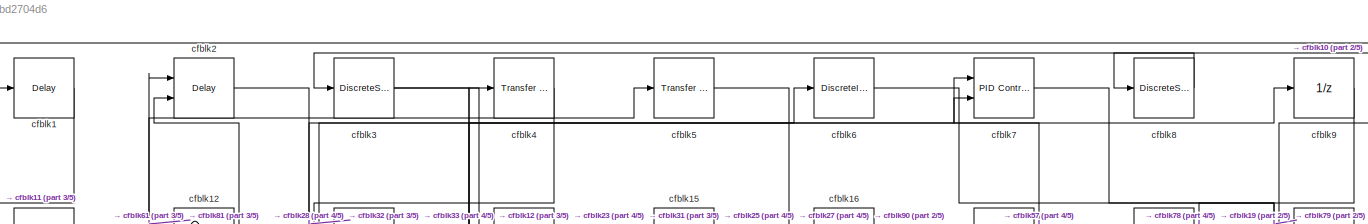
[diagram: root canvas - part 1/5, full width, top band]
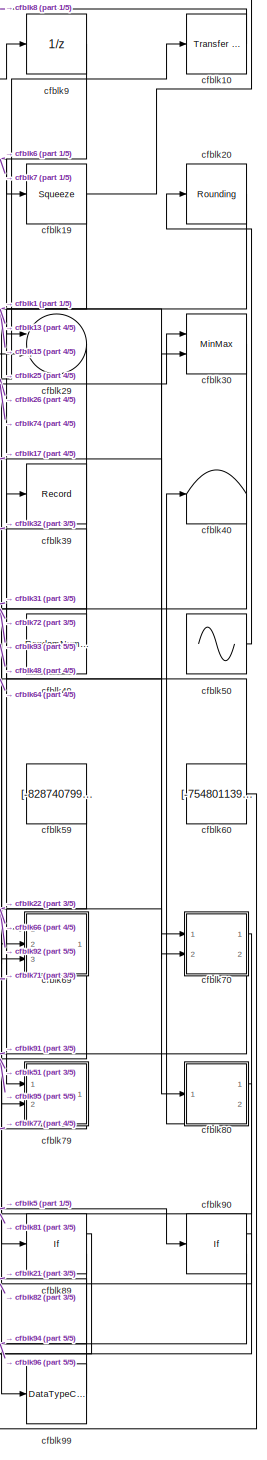
[diagram: root canvas - part 2/5, right side, full height]
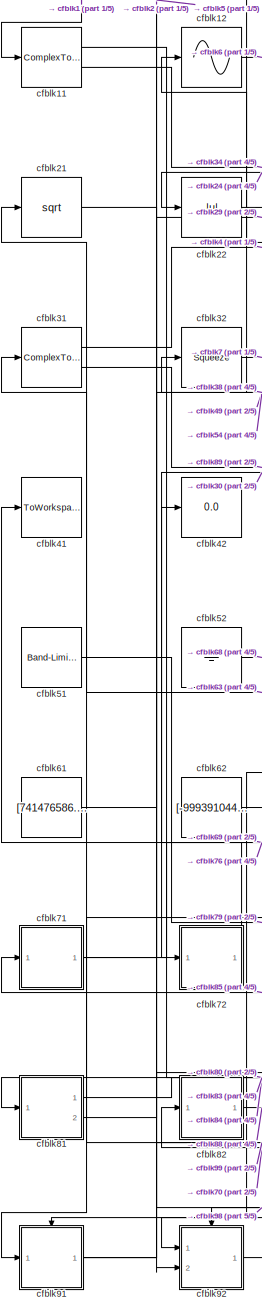
[diagram: root canvas - part 3/5, left side, full height]
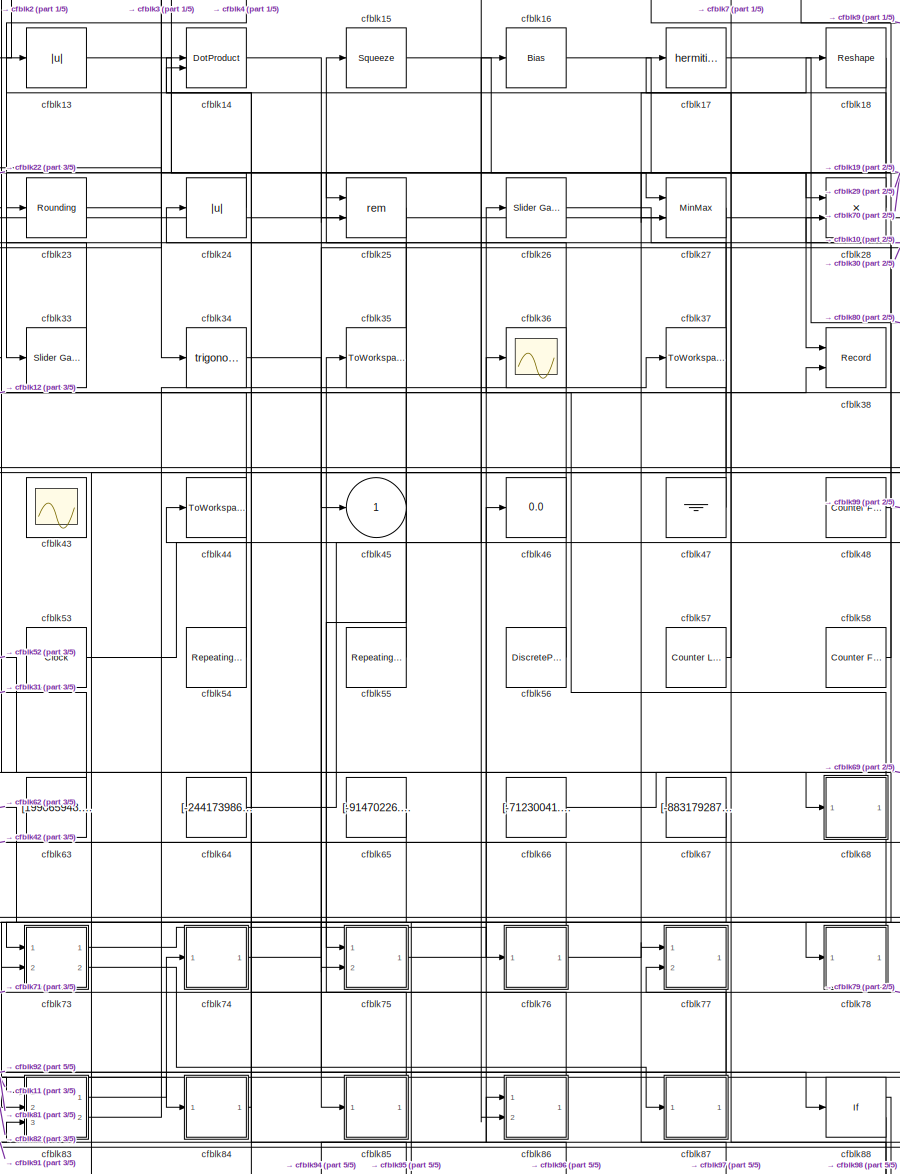
[diagram: root canvas - part 4/5, center side, full height]
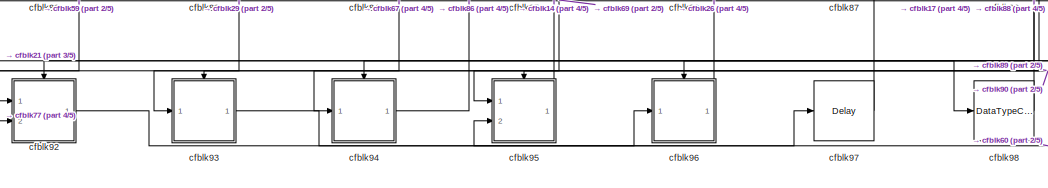
[diagram: root canvas - part 5/5, bottom center region]
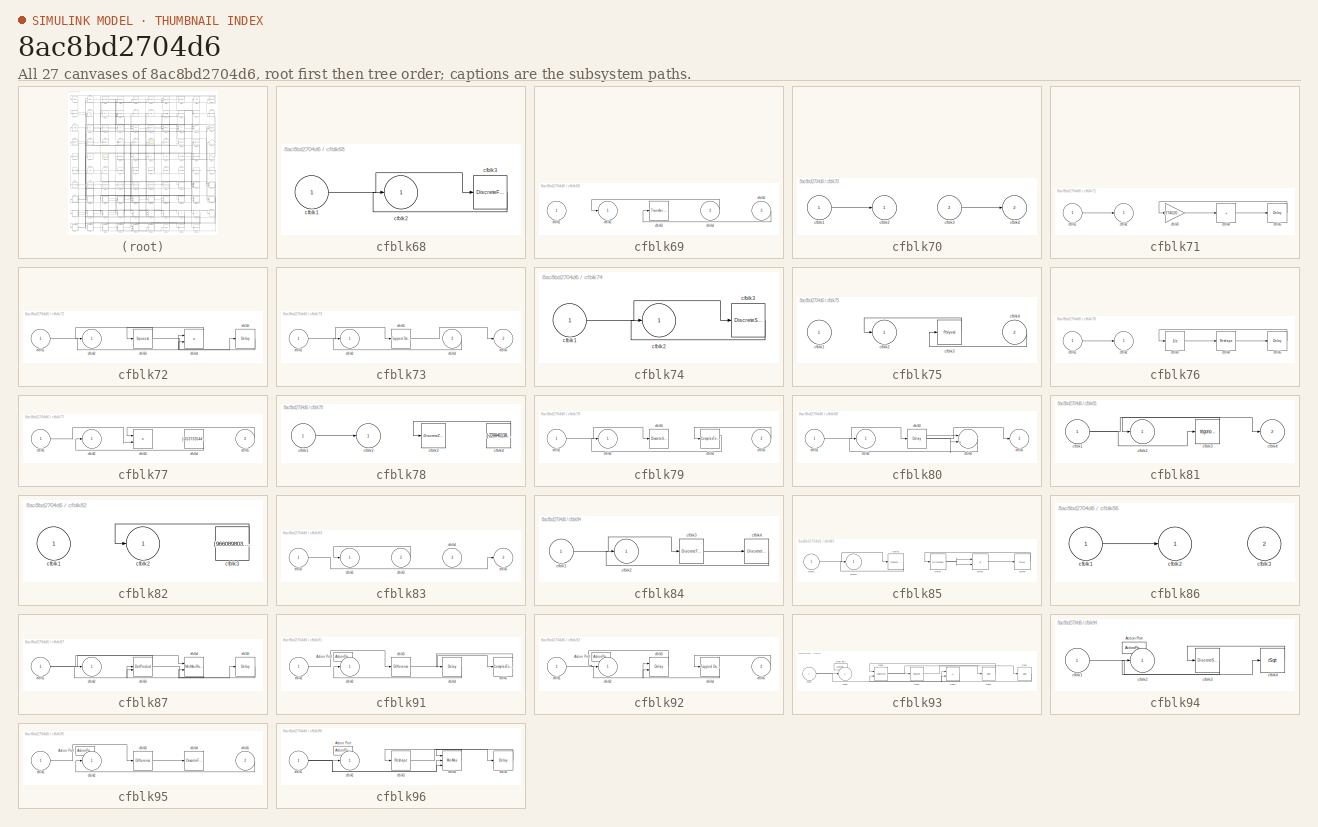
[diagram: thumbnail index - all 27 canvases of the model, root first then tree order]
MODEL slx_8ac8bd2704d6
KIND model
CONFIG AbsTol = auto
CONFIG EnableMultiTasking = off
CONFIG FixedStep = auto
CONFIG MaxStep = auto
CONFIG MinStep = auto
CONFIG RelTol = 1e-3
CONFIG SampleTimeConstraint = Unconstrained
CONFIG SolverName = VariableStepAuto
CONFIG StartTime = 0.0
CONFIG StopTime = 10.0
BLOCK [Delay] cfblk1
  InputPortMap = u0
  Ports = [1, 1]
  SampleTime = 1
BLOCK [Reference] cfblk10  REF=simulink/Discrete/Transfer Fcn
Real Zero
  Ports = [1, 1]
  SourceBlock = simulink/Discrete/Transfer Fcn\nReal Zero
  SourceProductBaseCode = SL
  SourceType = Transfer Fcn Real Zero
BLOCK [ComplexToMagnitudeAngle] cfblk11
  Ports = [1, 2]
BLOCK [Sin] cfblk12
  Ports = [1, 1]
  SampleTime = 0
  TimeSource = Use external signal
BLOCK [Abs] cfblk13
  SaturateOnIntegerOverflow = off
BLOCK [DotProduct] cfblk14
  OutDataTypeStr = Inherit: Inherit via internal rule
BLOCK [Squeeze] cfblk15
BLOCK [Bias] cfblk16
  Bias = [415498538.252529]
  SaturateOnIntegerOverflow = off
BLOCK [Math] cfblk17
  Operator = hermitian
  Ports = [1, 1]
BLOCK [Reshape] cfblk18
  Ports = [1, 1]
BLOCK [Squeeze] cfblk19
BLOCK [Delay] cfblk2
  InputPortMap = u0,e6
  Ports = [2, 1]
  SampleTime = 1
  ShowEnablePort = on
BLOCK [Rounding] cfblk20
BLOCK [Sqrt] cfblk21
BLOCK [Abs] cfblk22
  SaturateOnIntegerOverflow = off
BLOCK [Rounding] cfblk23
BLOCK [Abs] cfblk24
  SaturateOnIntegerOverflow = off
BLOCK [Math] cfblk25
  Operator = rem
  Ports = [2, 1]
BLOCK [Reference] cfblk26  REF=simulink/Math
Operations/Slider
Gain
  Ports = [1, 1]
  SourceBlock = simulink/Math\nOperations/Slider\nGain
  SourceProductBaseCode = SL
  SourceType = Slider Gain
BLOCK [MinMax] cfblk27
  Inputs = 2
  Ports = [2, 1]
BLOCK [Product] cfblk28
  Ports = [2, 1]
BLOCK [Sum] cfblk29
  Inputs = |++
  Ports = [2, 1]
BLOCK [DiscreteStateSpace] cfblk3
BLOCK [MinMax] cfblk30
  Function = max
  Inputs = 2
  Ports = [2, 1]
BLOCK [ComplexToRealImag] cfblk31
  Ports = [1, 2]
BLOCK [Squeeze] cfblk32
BLOCK [Reference] cfblk33  REF=simulink/Math
Operations/Slider
Gain
  Ports = [1, 1]
  SourceBlock = simulink/Math\nOperations/Slider\nGain
  SourceProductBaseCode = SL
  SourceType = Slider Gain
BLOCK [Trigonometry] cfblk34
  Ports = [1, 1]
BLOCK [ToWorkspace] cfblk35
  FixptAsFi = on
  MaxDataPoints = inf
  Ports = [1]
  SampleTime = -1
  SaveFormat = Timeseries
  VariableName = wsccavu
BLOCK [Scope] cfblk36
  Floating = off
  NumInputPorts = 1
  Ports = [1]
BLOCK [ToWorkspace] cfblk37
  FixptAsFi = on
  MaxDataPoints = inf
  Ports = [1]
  SampleTime = -1
  SaveFormat = Timeseries
  VariableName = lpgnain
BLOCK [Record] cfblk38
  CompatibilityTag = XY
  FileSettingsInternal = {"entries":[{"content":{"excelSettings":{"content":{},"type":"Streamout.ExcelSettings"}},"type":"Streamout.FileSettingStorage","uuid":"55c07847-b416-4147-ba9b-c4fbf5457b55"}],"packageUris":["http://schema.mathworks.com/mf0/streamout_blocks/R2020a"],"version":"1.0"}
  Layout = [1 1]
  Ports = [2]
  SignalsInternal = {"entries":[{"content":{"signals":[{"content":{"blockPath":["sampleModel270/cfblk38"],"channel":[],"dimensions":[1],"domain":"sampleModel270/cfblk38","lineColor":"#a2142f","plots":[1],"port":1,"sid":[""],"signalID":11209,"signalName":"cfblk16"},"type":"RecordBlkView.Signal","uuid":"6d9d134b-09a8-4e77-b9a8-4c5e57516884"},{"content":{"blockPath":["sampleModel270/cfblk38"],"channel":[],"dimensions":[...<+385ch>
  VisualizationBindings = {"xyplotplugin":{"info":[{"series":[{"bindingParametersList":[{"parameter":"X-Axis","signalID":11209,"signalName":"cfblk16"},{"parameter":"Y-Axis","signalID":11213,"signalName":"cfblk91"}],"seriesID":19260}],"subplotID":1}]}}
BLOCK [Record] cfblk39
  FileSettingsInternal = {"entries":[{"content":{"excelSettings":{"content":{},"type":"Streamout.ExcelSettings"}},"type":"Streamout.FileSettingStorage","uuid":"3d67d137-5401-4fa9-bcac-a18ba41f64ea"}],"packageUris":["http://schema.mathworks.com/mf0/streamout_blocks/R2020a"],"version":"1.0"}
  Ports = [1]
  SignalsInternal = {"entries":[{"content":{"signals":[{"content":{"blockPath":["sampleModel270/cfblk39"],"channel":[],"dimensions":[1],"domain":"sampleModel270/cfblk39","lineColor":"#fe330a","plots":[1],"port":1,"sid":[""],"signalID":11217,"signalName":"cfblk60"},"type":"RecordBlkView.Signal","uuid":"4590cb18-5316-4242-95f9-f30dc2470911"}]},"type":"RecordBlkView.InputSignals","uuid":"af798ec9-883d-434f-9e97-72437914...<+98ch>
  VisualizationBindings = {"sparklinesplugin":{"info":[{"bindingParametersList":[],"subplotID":1}]}}
BLOCK [Reference] cfblk4  REF=simulink/Discrete/Transfer Fcn
Real Zero
  Ports = [1, 1]
  SourceBlock = simulink/Discrete/Transfer Fcn\nReal Zero
  SourceProductBaseCode = SL
  SourceType = Transfer Fcn Real Zero
BLOCK [Terminator] cfblk40
BLOCK [ToWorkspace] cfblk41
  FixptAsFi = on
  MaxDataPoints = inf
  Ports = [1]
  SampleTime = -1
  SaveFormat = Timeseries
  VariableName = fwykvbd
BLOCK [Display] cfblk42
  Decimation = 1
  Ports = [1]
BLOCK [Scope] cfblk43
  Floating = on
  NumInputPorts = 1
  Ports = []
BLOCK [ToWorkspace] cfblk44
  FixptAsFi = on
  MaxDataPoints = inf
  Ports = [1]
  SampleTime = -1
  SaveFormat = Timeseries
  VariableName = zkzctmg
BLOCK [Outport] cfblk45
BLOCK [Display] cfblk46
  Decimation = 1
  Ports = [1]
BLOCK [Ground] cfblk47
BLOCK [Reference] cfblk48  REF=simulink/Sources/Counter
Free-Running
  Ports = [0, 1]
  SourceBlock = simulink/Sources/Counter\nFree-Running
  SourceProductBaseCode = SL
  SourceType = Counter Free-Running
BLOCK [RandomNumber] cfblk49
  Mean = [-13361.001595]
  SampleTime = 0.1
  Seed = [353484768.000000]
  Variance = [83852.352686]
BLOCK [Reference] cfblk5  REF=simulink/Discrete/Transfer Fcn
Lead or Lag
  Ports = [1, 1]
  SourceBlock = simulink/Discrete/Transfer Fcn\nLead or Lag
  SourceProductBaseCode = SL
  SourceType = Lead or Lag Compensator
BLOCK [Sin] cfblk50
  Amplitude = [595358799.977348]
  Bias = [424544015.992801]
  Ports = [0, 1]
  SampleTime = 0
BLOCK [Reference] cfblk51  REF=simulink/Sources/Band-Limited
White Noise
  Ports = [0, 1]
  SourceBlock = simulink/Sources/Band-Limited\nWhite Noise
  SourceProductBaseCode = SL
  SourceType = Band-Limited White Noise.
BLOCK [Ground] cfblk52
BLOCK [Clock] cfblk53
BLOCK [Reference] cfblk54  REF=simulink/Sources/Repeating
Sequence
  Ports = [0, 1]
  SourceBlock = simulink/Sources/Repeating\nSequence
  SourceProductBaseCode = SL
  SourceType = Repeating table
BLOCK [Reference] cfblk55  REF=simulink/Sources/Repeating
Sequence
Stair
  Ports = [0, 1]
  SourceBlock = simulink/Sources/Repeating\nSequence\nStair
  SourceProductBaseCode = SL
  SourceType = Repeating Sequence Stair
BLOCK [DiscretePulseGenerator] cfblk56
  Amplitude = [87379413.478695]
  Period = [35675365.567741]
  PhaseDelay = [7.000000]
  Ports = [0, 1]
  PulseType = Time based
  PulseWidth = 5
BLOCK [Reference] cfblk57  REF=simulink/Sources/Counter
Limited
  Ports = [0, 1]
  SourceBlock = simulink/Sources/Counter\nLimited
  SourceProductBaseCode = SL
  SourceType = Counter Limited
BLOCK [Reference] cfblk58  REF=simulink/Sources/Counter
Free-Running
  Ports = [0, 1]
  SourceBlock = simulink/Sources/Counter\nFree-Running
  SourceProductBaseCode = SL
  SourceType = Counter Free-Running
BLOCK [Constant] cfblk59
  SampleTime = 1
  Value = [-828740799.563611]
BLOCK [DiscreteIntegrator] cfblk6
  ICPrevOutput = DiscIntNeverNeededParam
  ICPrevScaledInput = DiscIntNeverNeededParam
  InitialConditionSetting = Auto
  Ports = [1, 1]
BLOCK [Constant] cfblk60
  SampleTime = 1
  Value = [-754801139.607691]
BLOCK [Constant] cfblk61
  SampleTime = 1
  Value = [741476586.692557]
BLOCK [Constant] cfblk62
  SampleTime = 1
  Value = [-999391044.804403]
BLOCK [Constant] cfblk63
  SampleTime = 1
  Value = [199065948.524050]
BLOCK [Constant] cfblk64
  SampleTime = 1
  Value = [-244173986.256376]
BLOCK [Constant] cfblk65
  SampleTime = 1
  Value = [-91470226.901784]
BLOCK [Constant] cfblk66
  SampleTime = 1
  Value = [-71230041.904026]
BLOCK [Constant] cfblk67
  SampleTime = 1
  Value = [-883179287.350071]
BLOCK [SubSystem] cfblk68
  Ports = [1, 1]
  RequestExecContextInheritance = off
BLOCK [Inport] cfblk68/cfblk1
BLOCK [Outport] cfblk68/cfblk2
BLOCK [DiscreteFir] cfblk68/cfblk3
  InputPortMap = u0
  OutputPortMap = o0
  Ports = [1, 1]
  SampleTime = 1
BLOCK [SubSystem] cfblk69
  Ports = [3, 1]
  RequestExecContextInheritance = off
BLOCK [Inport] cfblk69/cfblk1
BLOCK [Outport] cfblk69/cfblk2
BLOCK [Reference] cfblk69/cfblk3  REF=simulink/Discrete/Transfer Fcn
Lead or Lag
  Ports = [1, 1]
  SourceBlock = simulink/Discrete/Transfer Fcn\nLead or Lag
  SourceProductBaseCode = SL
  SourceType = Lead or Lag Compensator
BLOCK [Inport] cfblk69/cfblk4
  Port = 2
BLOCK [Inport] cfblk69/cfblk5
  Port = 3
BLOCK [Reference] cfblk7  REF=slpidlib/PID Controller (2DOF)
  Ports = [2, 1]
  SourceBlock = slpidlib/PID Controller (2DOF)
  SourceProductBaseCode = SL
  SourceType = PID 2dof
BLOCK [SubSystem] cfblk70
  Ports = [2, 2]
  RequestExecContextInheritance = off
BLOCK [Inport] cfblk70/cfblk1
BLOCK [Outport] cfblk70/cfblk2
BLOCK [Inport] cfblk70/cfblk3
  Port = 2
BLOCK [Outport] cfblk70/cfblk4
  Port = 2
BLOCK [SubSystem] cfblk71
  Ports = [1, 1]
  RequestExecContextInheritance = off
BLOCK [Inport] cfblk71/cfblk1
BLOCK [Outport] cfblk71/cfblk2
BLOCK [Gain] cfblk71/cfblk3
  Gain = [774020727.519928]
BLOCK [Sum] cfblk71/cfblk4
  IconShape = rectangular
  Inputs = +
  Ports = [1, 1]
BLOCK [Delay] cfblk71/cfblk5
  InputPortMap = u0
  Ports = [1, 1]
  SampleTime = 1
BLOCK [SubSystem] cfblk72
  Ports = [1, 1]
  RequestExecContextInheritance = off
BLOCK [Inport] cfblk72/cfblk1
BLOCK [Outport] cfblk72/cfblk2
BLOCK [Squeeze] cfblk72/cfblk3
BLOCK [Product] cfblk72/cfblk4
  Ports = [2, 1]
BLOCK [Delay] cfblk72/cfblk5
  InputPortMap = u0
  Ports = [1, 1]
  SampleTime = 1
BLOCK [SubSystem] cfblk73
  Ports = [2, 2]
  RequestExecContextInheritance = off
BLOCK [Inport] cfblk73/cfblk1
BLOCK [Outport] cfblk73/cfblk2
BLOCK [Reference] cfblk73/cfblk3  REF=simulink/Discrete/Tapped Delay
  Ports = [1, 1]
  SourceBlock = simulink/Discrete/Tapped Delay
  SourceProductBaseCode = SL
  SourceType = Tapped Delay Line
BLOCK [Inport] cfblk73/cfblk4
  Port = 2
BLOCK [Outport] cfblk73/cfblk5
  Port = 2
BLOCK [SubSystem] cfblk74
  Ports = [1, 1]
  RequestExecContextInheritance = off
BLOCK [Inport] cfblk74/cfblk1
BLOCK [Outport] cfblk74/cfblk2
BLOCK [DiscreteStateSpace] cfblk74/cfblk3
BLOCK [SubSystem] cfblk75
  Ports = [2, 1]
  RequestExecContextInheritance = off
BLOCK [Inport] cfblk75/cfblk1
BLOCK [Outport] cfblk75/cfblk2
BLOCK [Polyval] cfblk75/cfblk3
  Coefs = [ +2.081618890e-019, -1.441693666e-014, +4.719686976e-010, -8.536869453e-006, +1.621573104e-001, -8.087801117e+001 ]
BLOCK [Inport] cfblk75/cfblk4
  Port = 2
BLOCK [SubSystem] cfblk76
  Ports = [1, 1]
  RequestExecContextInheritance = off
BLOCK [Inport] cfblk76/cfblk1
BLOCK [Outport] cfblk76/cfblk2
BLOCK [UnitDelay] cfblk76/cfblk3
  HasFrameUpgradeWarning = on
BLOCK [Reshape] cfblk76/cfblk4
  Ports = [1, 1]
BLOCK [Delay] cfblk76/cfblk5
  InputPortMap = u0
  Ports = [1, 1]
  SampleTime = 1
BLOCK [SubSystem] cfblk77
  Ports = [2, 1]
  RequestExecContextInheritance = off
BLOCK [Inport] cfblk77/cfblk1
BLOCK [Outport] cfblk77/cfblk2
BLOCK [Product] cfblk77/cfblk3
  Inputs = **
  Ports = [2, 1]
BLOCK [Constant] cfblk77/cfblk4
  SampleTime = 1
  Value = [-653733544.862791]
BLOCK [Inport] cfblk77/cfblk5
  Port = 2
BLOCK [SubSystem] cfblk78
  Ports = [1, 1]
  RequestExecContextInheritance = off
BLOCK [Inport] cfblk78/cfblk1
BLOCK [Outport] cfblk78/cfblk2
BLOCK [DiscreteZeroPole] cfblk78/cfblk3
  Gain = 1
  Poles = [0 0.5]
BLOCK [Constant] cfblk78/cfblk4
  SampleTime = 1
  Value = [-229940139.054615]
BLOCK [SubSystem] cfblk79
  Ports = [2, 1]
  RequestExecContextInheritance = off
BLOCK [Inport] cfblk79/cfblk1
BLOCK [Outport] cfblk79/cfblk2
BLOCK [DiscreteStateSpace] cfblk79/cfblk3
BLOCK [ComplexToRealImag] cfblk79/cfblk4
  Ports = [1, 2]
BLOCK [Inport] cfblk79/cfblk5
  Port = 2
BLOCK [DiscreteStateSpace] cfblk8
BLOCK [SubSystem] cfblk80
  Ports = [1, 2]
  RequestExecContextInheritance = off
BLOCK [Inport] cfblk80/cfblk1
BLOCK [Outport] cfblk80/cfblk2
BLOCK [Delay] cfblk80/cfblk3
  InputPortMap = u0
  Ports = [1, 1]
  SampleTime = 1
BLOCK [Sum] cfblk80/cfblk4
  Inputs = |++
  Ports = [2, 1]
BLOCK [Outport] cfblk80/cfblk5
  Port = 2
BLOCK [SubSystem] cfblk81
  Ports = [1, 2]
  RequestExecContextInheritance = off
BLOCK [Inport] cfblk81/cfblk1
BLOCK [Outport] cfblk81/cfblk2
BLOCK [Trigonometry] cfblk81/cfblk3
  Ports = [1, 1]
BLOCK [Outport] cfblk81/cfblk4
  Port = 2
BLOCK [SubSystem] cfblk82
  Ports = [1, 1]
  RequestExecContextInheritance = off
BLOCK [Inport] cfblk82/cfblk1
BLOCK [Outport] cfblk82/cfblk2
BLOCK [Constant] cfblk82/cfblk3
  SampleTime = 1
  Value = [966089803.831900]
BLOCK [SubSystem] cfblk83
  Ports = [3, 2]
  RequestExecContextInheritance = off
BLOCK [Inport] cfblk83/cfblk1
BLOCK [Outport] cfblk83/cfblk2
BLOCK [Inport] cfblk83/cfblk3
  Port = 2
BLOCK [Inport] cfblk83/cfblk4
  Port = 3
BLOCK [Outport] cfblk83/cfblk5
  Port = 2
BLOCK [SubSystem] cfblk84
  Ports = [1, 1]
  RequestExecContextInheritance = off
BLOCK [Inport] cfblk84/cfblk1
BLOCK [Outport] cfblk84/cfblk2
BLOCK [DiscreteTransferFcn] cfblk84/cfblk3
  InputPortMap = u0
  Ports = [1, 1]
  SampleTime = 1
BLOCK [DiscreteIntegrator] cfblk84/cfblk4
  ICPrevOutput = DiscIntNeverNeededParam
  ICPrevScaledInput = DiscIntNeverNeededParam
  InitialConditionSetting = Auto
  Ports = [1, 1]
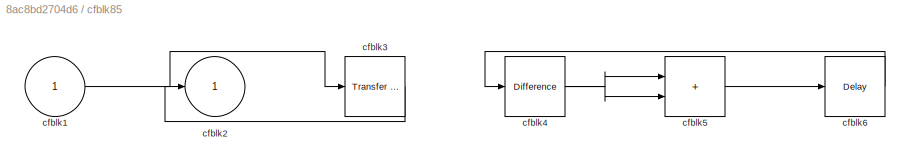
BLOCK [SubSystem] cfblk85
  Ports = [1, 1]
  RequestExecContextInheritance = off
BLOCK [Inport] cfblk85/cfblk1
BLOCK [Outport] cfblk85/cfblk2
BLOCK [Reference] cfblk85/cfblk3  REF=simulink/Discrete/Transfer Fcn
Lead or Lag
  Ports = [1, 1]
  SourceBlock = simulink/Discrete/Transfer Fcn\nLead or Lag
  SourceProductBaseCode = SL
  SourceType = Lead or Lag Compensator
BLOCK [Reference] cfblk85/cfblk4  REF=simulink/Discrete/Difference
  Ports = [1, 1]
  SourceBlock = simulink/Discrete/Difference
  SourceProductBaseCode = SL
  SourceType = Difference
BLOCK [Sum] cfblk85/cfblk5
  IconShape = rectangular
  Ports = [2, 1]
BLOCK [Delay] cfblk85/cfblk6
  InputPortMap = u0
  Ports = [1, 1]
  SampleTime = 1
BLOCK [SubSystem] cfblk86
  Ports = [2, 1]
  RequestExecContextInheritance = off
BLOCK [Inport] cfblk86/cfblk1
BLOCK [Outport] cfblk86/cfblk2
BLOCK [Inport] cfblk86/cfblk3
  Port = 2
BLOCK [SubSystem] cfblk87
  Ports = [1, 1]
  RequestExecContextInheritance = off
BLOCK [Inport] cfblk87/cfblk1
BLOCK [Outport] cfblk87/cfblk2
BLOCK [DotProduct] cfblk87/cfblk3
  OutDataTypeStr = Inherit: Inherit via internal rule
BLOCK [Reference] cfblk87/cfblk4  REF=simulink/Math
Operations/MinMax
Running
Resettable
  Ports = [2, 1]
  SourceBlock = simulink/Math\nOperations/MinMax\nRunning\nResettable
  SourceProductBaseCode = SL
  SourceType = MinMax Running Resettable
BLOCK [Delay] cfblk87/cfblk5
  InputPortMap = u0
  Ports = [1, 1]
  SampleTime = 1
BLOCK [If] cfblk88
  IfExpression = u1 >= 0
  Ports = [1, 2]
  SampleTime = 1
BLOCK [If] cfblk89
  IfExpression = u1 >= 0
  Ports = [1, 2]
  SampleTime = 1
BLOCK [UnitDelay] cfblk9
  HasFrameUpgradeWarning = on
BLOCK [If] cfblk90
  IfExpression = u1 >= 0
  Ports = [1, 2]
  SampleTime = 1
BLOCK [SubSystem] cfblk91
  Ports = [1, 1, 0, 0, 0, 0, 0, 1]
  RequestExecContextInheritance = off
  TreatAsAtomicUnit = on
BLOCK [ActionPort] cfblk91/Action Port
  ActionPortLabel = if(u1 >= 0)
BLOCK [Inport] cfblk91/cfblk1
BLOCK [Outport] cfblk91/cfblk2
BLOCK [Reference] cfblk91/cfblk3  REF=simulink/Discrete/Difference
  Ports = [1, 1]
  SourceBlock = simulink/Discrete/Difference
  SourceProductBaseCode = SL
  SourceType = Difference
BLOCK [Delay] cfblk91/cfblk4
  InputPortMap = u0
  Ports = [1, 1]
BLOCK [ComplexToRealImag] cfblk91/cfblk5
  Ports = [1, 2]
BLOCK [SubSystem] cfblk92
  Ports = [2, 1, 0, 0, 0, 0, 0, 1]
  RequestExecContextInheritance = off
  TreatAsAtomicUnit = on
BLOCK [ActionPort] cfblk92/Action Port
  ActionPortLabel = else
BLOCK [Inport] cfblk92/cfblk1
BLOCK [Outport] cfblk92/cfblk2
BLOCK [Delay] cfblk92/cfblk3
  InputPortMap = u0,e6
  Ports = [2, 1]
  ShowEnablePort = on
BLOCK [Reference] cfblk92/cfblk4  REF=simulink/Discrete/Tapped Delay
  Ports = [1, 1]
  SourceBlock = simulink/Discrete/Tapped Delay
  SourceProductBaseCode = SL
  SourceType = Tapped Delay Line
BLOCK [Inport] cfblk92/cfblk5
  Port = 2
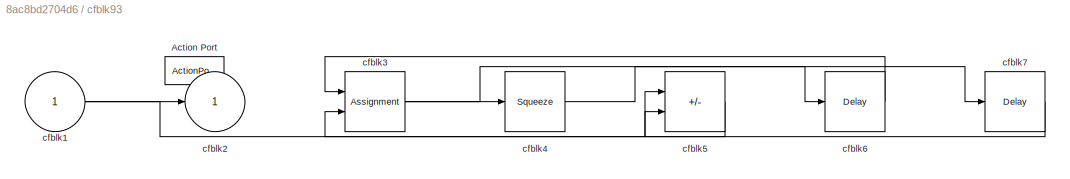
BLOCK [SubSystem] cfblk93
  Ports = [1, 1, 0, 0, 0, 0, 0, 1]
  RequestExecContextInheritance = off
  TreatAsAtomicUnit = on
BLOCK [ActionPort] cfblk93/Action Port
  ActionPortLabel = if(u1 >= 0)
BLOCK [Inport] cfblk93/cfblk1
BLOCK [Outport] cfblk93/cfblk2
BLOCK [Assignment] cfblk93/cfblk3
  DiagnosticForDimensions = Warning
  IndexOptions = Index vector (dialog)
  Indices = 1
  OutputSizes = 1
  Ports = [2, 1]
BLOCK [Squeeze] cfblk93/cfblk4
BLOCK [Sum] cfblk93/cfblk5
  IconShape = rectangular
  Inputs = +-
  Ports = [2, 1]
BLOCK [Delay] cfblk93/cfblk6
  InputPortMap = u0
  Ports = [1, 1]
BLOCK [Delay] cfblk93/cfblk7
  InputPortMap = u0
  Ports = [1, 1]
BLOCK [SubSystem] cfblk94
  Ports = [1, 1, 0, 0, 0, 0, 0, 1]
  RequestExecContextInheritance = off
  TreatAsAtomicUnit = on
BLOCK [ActionPort] cfblk94/Action Port
  ActionPortLabel = else
BLOCK [Inport] cfblk94/cfblk1
BLOCK [Outport] cfblk94/cfblk2
BLOCK [DiscreteStateSpace] cfblk94/cfblk3
  SampleTime = -1
BLOCK [Sqrt] cfblk94/cfblk4
  AlgorithmType = Newton-Raphson
  Operator = rSqrt
BLOCK [SubSystem] cfblk95
  Ports = [2, 1, 0, 0, 0, 0, 0, 1]
  RequestExecContextInheritance = off
  TreatAsAtomicUnit = on
BLOCK [ActionPort] cfblk95/Action Port
  ActionPortLabel = if(u1 >= 0)
BLOCK [Inport] cfblk95/cfblk1
BLOCK [Outport] cfblk95/cfblk2
BLOCK [Reference] cfblk95/cfblk3  REF=simulink/Discrete/Difference
  Ports = [1, 1]
  SourceBlock = simulink/Discrete/Difference
  SourceProductBaseCode = SL
  SourceType = Difference
BLOCK [DiscreteFir] cfblk95/cfblk4
  InputPortMap = u0
  OutputPortMap = o0
  Ports = [1, 1]
BLOCK [Inport] cfblk95/cfblk5
  Port = 2
BLOCK [SubSystem] cfblk96
  Ports = [1, 1, 0, 0, 0, 0, 0, 1]
  RequestExecContextInheritance = off
  TreatAsAtomicUnit = on
BLOCK [ActionPort] cfblk96/Action Port
  ActionPortLabel = else
BLOCK [Inport] cfblk96/cfblk1
BLOCK [Outport] cfblk96/cfblk2
BLOCK [Reshape] cfblk96/cfblk3
  Ports = [1, 1]
BLOCK [MinMax] cfblk96/cfblk4
  Function = max
  Inputs = 3
  Ports = [3, 1]
BLOCK [Delay] cfblk96/cfblk5
  InputPortMap = u0
  Ports = [1, 1]
BLOCK [Delay] cfblk97
  InputPortMap = u0
  Ports = [1, 1]
  SampleTime = 1
BLOCK [DataTypeConversion] cfblk98
  RndMeth = Floor
  SaturateOnIntegerOverflow = off
BLOCK [DataTypeConversion] cfblk99
  RndMeth = Floor
  SaturateOnIntegerOverflow = off
LINE cfblk10:1 -> cfblk8:1
LINE cfblk11:1 -> cfblk84:1
LINE cfblk11:2 -> cfblk34:1
LINE cfblk12:1 -> cfblk6:1
LINE cfblk13:1 -> cfblk29:1
LINE cfblk14:1 -> cfblk86:2
LINE cfblk15:1 -> cfblk70:1
LINE cfblk16:1 -> cfblk38:1
LINE cfblk17:1 -> cfblk80:1
LINE cfblk18:1 -> cfblk27:2
NET cfblk19:1 -> cfblk1:1, cfblk25:1
LINE cfblk1:1 -> cfblk11:1
LINE cfblk20:1 -> cfblk69:3
LINE cfblk21:1 -> cfblk98:1
LINE cfblk22:1 -> cfblk70:2
LINE cfblk23:1 -> cfblk9:1
LINE cfblk24:1 -> cfblk22:1
LINE cfblk25:1 -> cfblk75:1
LINE cfblk26:1 -> cfblk10:1
LINE cfblk27:1 -> cfblk75:2
LINE cfblk28:1 -> cfblk13:1
LINE cfblk29:1 -> cfblk93:1
LINE cfblk2:1 -> cfblk28:1
LINE cfblk30:1 -> cfblk72:1
LINE cfblk31:1 -> cfblk4:1
LINE cfblk31:2 -> cfblk89:1
LINE cfblk32:1 -> cfblk7:1
LINE cfblk33:1 -> cfblk2:2
LINE cfblk34:1 -> cfblk45:1
NET cfblk3:1 -> cfblk25:2, cfblk27:1
LINE cfblk47:1 -> cfblk23:1
LINE cfblk48:1 -> cfblk99:1
LINE cfblk49:1 -> cfblk32:1
LINE cfblk4:1 -> cfblk33:1
LINE cfblk50:1 -> cfblk20:1
LINE cfblk51:1 -> cfblk79:2
LINE cfblk52:1 -> cfblk68:1
LINE cfblk53:1 -> cfblk16:1
LINE cfblk54:1 -> cfblk12:1
LINE cfblk55:1 -> cfblk24:1
LINE cfblk56:1 -> cfblk15:1
LINE cfblk57:1 -> cfblk7:2
LINE cfblk58:1 -> cfblk28:2
LINE cfblk59:1 -> cfblk92:1
LINE cfblk5:1 -> cfblk90:1
NET cfblk60:1 -> cfblk39:1, cfblk95:2
LINE cfblk61:1 -> cfblk2:1
LINE cfblk62:1 -> cfblk85:1
LINE cfblk63:1 -> cfblk31:1
LINE cfblk64:1 -> cfblk30:2
LINE cfblk65:1 -> cfblk83:2
LINE cfblk66:1 -> cfblk69:2
LINE cfblk67:1 -> cfblk94:1
LINE cfblk68/cfblk1:1 -> cfblk68/cfblk3:1
LINE cfblk68/cfblk3:1 -> cfblk68/cfblk2:1
NET cfblk68:1 -> cfblk36:1, cfblk73:2
LINE cfblk69/cfblk4:1 -> cfblk69/cfblk2:1
LINE cfblk69/cfblk5:1 -> cfblk69/cfblk3:1
LINE cfblk69:1 -> cfblk95:1
LINE cfblk6:1 -> cfblk79:1
LINE cfblk70/cfblk1:1 -> cfblk70/cfblk2:1
LINE cfblk70/cfblk3:1 -> cfblk70/cfblk4:1
LINE cfblk70:1 -> cfblk82:1
LINE cfblk70:2 -> cfblk91:1
LINE cfblk71/cfblk1:1 -> cfblk71/cfblk2:1
LINE cfblk71/cfblk3:1 -> cfblk71/cfblk4:1
LINE cfblk71/cfblk4:1 -> cfblk71/cfblk5:1
LINE cfblk71/cfblk5:1 -> cfblk71/cfblk3:1
NET cfblk71:1 -> cfblk29:2, cfblk69:1
LINE cfblk72/cfblk1:1 -> cfblk72/cfblk4:1
NET cfblk72/cfblk3:1 -> cfblk72/cfblk2:1, cfblk72/cfblk5:1
LINE cfblk72/cfblk4:1 -> cfblk72/cfblk3:1
LINE cfblk72/cfblk5:1 -> cfblk72/cfblk4:2
LINE cfblk72:1 -> cfblk41:1
LINE cfblk73/cfblk1:1 -> cfblk73/cfblk3:1
LINE cfblk73/cfblk3:1 -> cfblk73/cfblk5:1
LINE cfblk73/cfblk4:1 -> cfblk73/cfblk2:1
LINE cfblk73:1 -> cfblk76:1
LINE cfblk73:2 -> cfblk87:1
LINE cfblk74/cfblk1:1 -> cfblk74/cfblk3:1
LINE cfblk74/cfblk3:1 -> cfblk74/cfblk2:1
LINE cfblk74:1 -> cfblk30:1
LINE cfblk75/cfblk3:1 -> cfblk75/cfblk2:1
LINE cfblk75/cfblk4:1 -> cfblk75/cfblk3:1
LINE cfblk75:1 -> cfblk46:1
LINE cfblk76/cfblk1:1 -> cfblk76/cfblk2:1
LINE cfblk76/cfblk3:1 -> cfblk76/cfblk4:1
LINE cfblk76/cfblk4:1 -> cfblk76/cfblk5:1
LINE cfblk76/cfblk5:1 -> cfblk76/cfblk3:1
NET cfblk76:1 -> cfblk18:1, cfblk42:1
LINE cfblk77/cfblk1:1 -> cfblk77/cfblk3:2
LINE cfblk77/cfblk4:1 -> cfblk77/cfblk2:1
LINE cfblk77/cfblk5:1 -> cfblk77/cfblk3:1
LINE cfblk77:1 -> cfblk92:2
LINE cfblk78/cfblk1:1 -> cfblk78/cfblk2:1
LINE cfblk78/cfblk4:1 -> cfblk78/cfblk3:1
LINE cfblk78:1 -> cfblk73:1
LINE cfblk79/cfblk1:1 -> cfblk79/cfblk3:1
LINE cfblk79/cfblk4:1 -> cfblk79/cfblk2:1
LINE cfblk79/cfblk5:1 -> cfblk79/cfblk4:1
LINE cfblk79:1 -> cfblk77:2
LINE cfblk7:1 -> cfblk19:1
LINE cfblk80/cfblk1:1 -> cfblk80/cfblk3:1
NET cfblk80/cfblk3:1 -> cfblk80/cfblk4:1, cfblk80/cfblk4:2, cfblk80/cfblk5:1
LINE cfblk80/cfblk4:1 -> cfblk80/cfblk2:1
LINE cfblk80:1 -> cfblk81:1
LINE cfblk80:2 -> cfblk40:1
NET cfblk81/cfblk1:1 -> cfblk81/cfblk3:1, cfblk81/cfblk4:1
LINE cfblk81/cfblk3:1 -> cfblk81/cfblk2:1
LINE cfblk81:1 -> cfblk83:1
LINE cfblk81:2 -> cfblk5:1
LINE cfblk82/cfblk3:1 -> cfblk82/cfblk2:1
LINE cfblk82:1 -> cfblk88:1
LINE cfblk83/cfblk1:1 -> cfblk83/cfblk5:1
LINE cfblk83/cfblk3:1 -> cfblk83/cfblk2:1
LINE cfblk83:1 -> cfblk74:1
LINE cfblk83:2 -> cfblk37:1
LINE cfblk84/cfblk1:1 -> cfblk84/cfblk3:1
LINE cfblk84/cfblk3:1 -> cfblk84/cfblk4:1
LINE cfblk84/cfblk4:1 -> cfblk84/cfblk2:1
LINE cfblk84:1 -> cfblk44:1
LINE cfblk85/cfblk1:1 -> cfblk85/cfblk3:1
LINE cfblk85/cfblk3:1 -> cfblk85/cfblk2:1
NET cfblk85/cfblk4:1 -> cfblk85/cfblk5:1, cfblk85/cfblk5:2
LINE cfblk85/cfblk5:1 -> cfblk85/cfblk6:1
LINE cfblk85/cfblk6:1 -> cfblk85/cfblk4:1
LINE cfblk85:1 -> cfblk71:1
LINE cfblk86/cfblk1:1 -> cfblk86/cfblk2:1
LINE cfblk86:1 -> cfblk35:1
NET cfblk87/cfblk1:1 -> cfblk87/cfblk3:2, cfblk87/cfblk4:1
NET cfblk87/cfblk3:1 -> cfblk87/cfblk2:1, cfblk87/cfblk5:1
LINE cfblk87/cfblk4:1 -> cfblk87/cfblk3:1
LINE cfblk87/cfblk5:1 -> cfblk87/cfblk4:2
LINE cfblk87:1 -> cfblk14:1
LINE cfblk88:1 -> cfblk91:ifaction
LINE cfblk88:2 -> cfblk92:ifaction
LINE cfblk89:1 -> cfblk93:ifaction
LINE cfblk89:2 -> cfblk94:ifaction
LINE cfblk8:1 -> cfblk3:1
LINE cfblk90:1 -> cfblk95:ifaction
LINE cfblk90:2 -> cfblk96:ifaction
LINE cfblk91/cfblk1:1 -> cfblk91/cfblk3:1
LINE cfblk91/cfblk3:1 -> cfblk91/cfblk5:1
LINE cfblk91/cfblk4:1 -> cfblk91/cfblk2:1
LINE cfblk91/cfblk5:1 -> cfblk91/cfblk4:1
NET cfblk91:1 -> cfblk38:2, cfblk83:3
LINE cfblk92/cfblk1:1 -> cfblk92/cfblk3:1
LINE cfblk92/cfblk3:1 -> cfblk92/cfblk2:1
LINE cfblk92/cfblk4:1 -> cfblk92/cfblk3:2
LINE cfblk92/cfblk5:1 -> cfblk92/cfblk4:1
LINE cfblk92:1 -> cfblk97:1
NET cfblk93/cfblk1:1 -> cfblk93/cfblk2:1, cfblk93/cfblk5:1
NET cfblk93/cfblk3:1 -> cfblk93/cfblk4:1, cfblk93/cfblk7:1
LINE cfblk93/cfblk4:1 -> cfblk93/cfblk6:1
LINE cfblk93/cfblk5:1 -> cfblk93/cfblk3:2
LINE cfblk93/cfblk6:1 -> cfblk93/cfblk3:1
LINE cfblk93/cfblk7:1 -> cfblk93/cfblk5:2
LINE cfblk93:1 -> cfblk96:1
LINE cfblk94/cfblk1:1 -> cfblk94/cfblk4:1
LINE cfblk94/cfblk3:1 -> cfblk94/cfblk2:1
LINE cfblk94/cfblk4:1 -> cfblk94/cfblk3:1
LINE cfblk94:1 -> cfblk86:1
LINE cfblk95/cfblk1:1 -> cfblk95/cfblk3:1
LINE cfblk95/cfblk3:1 -> cfblk95/cfblk4:1
LINE cfblk95/cfblk5:1 -> cfblk95/cfblk2:1
LINE cfblk95:1 -> cfblk14:2
NET cfblk96/cfblk1:1 -> cfblk96/cfblk2:1, cfblk96/cfblk4:2, cfblk96/cfblk4:3
LINE cfblk96/cfblk3:1 -> cfblk96/cfblk5:1
LINE cfblk96/cfblk4:1 -> cfblk96/cfblk3:1
LINE cfblk96/cfblk5:1 -> cfblk96/cfblk4:1
LINE cfblk96:1 -> cfblk26:1
LINE cfblk97:1 -> cfblk77:1
LINE cfblk98:1 -> cfblk17:1
LINE cfblk99:1 -> cfblk21:1
LINE cfblk9:1 -> cfblk78:1
note: NET lines group one-source signal fan-out (src -> all destinations, sorted); 1:1 wires keep LINE
